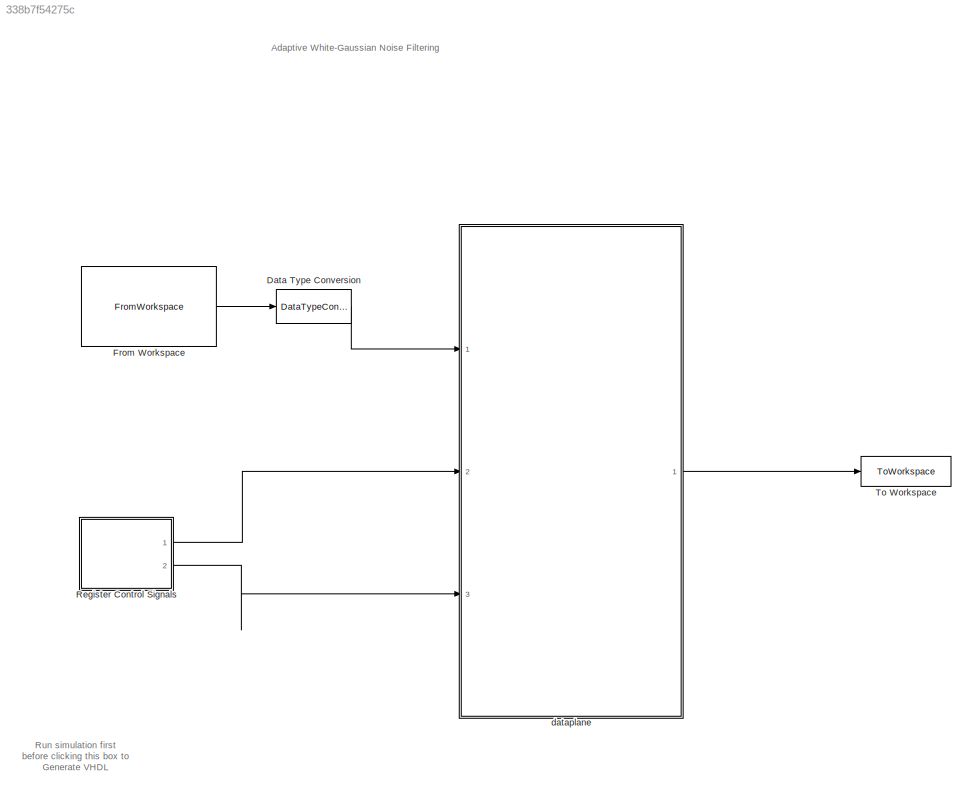
MODEL slx_338b7f54275c
KIND model
CONFIG AbsTol = auto
CONFIG EnableMultiTasking = off
CONFIG FixedStep = auto
CONFIG InitFcn = initCallback
CONFIG MaxStep = auto
CONFIG MinStep = auto
CONFIG RelTol = 1e-3
CONFIG SampleTimeConstraint = Unconstrained
CONFIG Solver = FixedStepDiscrete
CONFIG SolverName = FixedStepDiscrete
CONFIG StartTime = 0.0
CONFIG StopFcn = stopCallback
CONFIG StopTime = stopTime
BLOCK [DataTypeConversion] Data Type Conversion
  OutDataTypeStr = fixdt(1,32,28)
  RndMeth = Floor
  SaturateOnIntegerOverflow = off
BLOCK [FromWorkspace] From Workspace
  Interpolate = off
  OutDataTypeStr = double
  OutputAfterFinalValue = Setting to zero
  SampleTime = 1 / config.system.sampleClockFrequency
  VariableName = testSignal.asTimeSeries
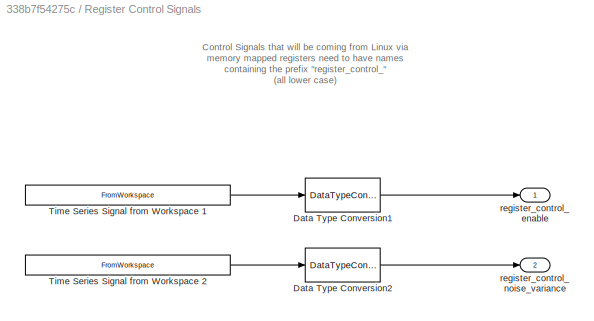
BLOCK [SubSystem] Register Control Signals
  Ports = [0, 2]
  RequestExecContextInheritance = off
BLOCK [DataTypeConversion] Register Control Signals/Data Type Conversion1
  OutDataTypeStr = mp.register{1}.dataType
  RndMeth = Floor
  SaturateOnIntegerOverflow = off
BLOCK [DataTypeConversion] Register Control Signals/Data Type Conversion2
  OutDataTypeStr = mp.register{2}.dataType
  RndMeth = Floor
  SaturateOnIntegerOverflow = off
BLOCK [FromWorkspace] Register Control Signals/Time Series Signal from Workspace 1
  OutDataTypeStr = double
  SampleTime = 1 / config.system.sampleClockFrequency
  VariableName = mp.register{1}.timeseries
BLOCK [FromWorkspace] Register Control Signals/Time Series Signal from Workspace 2
  OutDataTypeStr = double
  SampleTime = 1 / config.system.sampleClockFrequency
  VariableName = mp.register{2}.timeseries
BLOCK [Outport] Register Control Signals/register_control_enable
  VectorParamsAs1DForOutWhenUnconnected = off
BLOCK [Outport] Register Control Signals/register_control_noise_variance
  Port = 2
  VectorParamsAs1DForOutWhenUnconnected = off
BLOCK [ToWorkspace] To Workspace
  FixptAsFi = on
  MaxDataPoints = inf
  Ports = [1]
  SampleTime = -1
  Save2DSignal = 2-D array (concatenate along first dimension)
  SaveFormat = Timeseries
  VariableName = dataOut
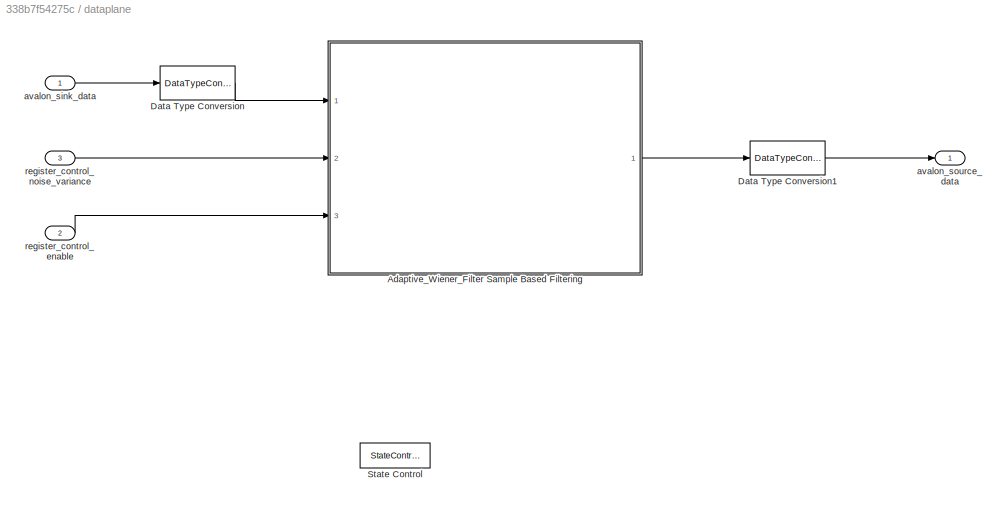
BLOCK [SubSystem] dataplane
  Ports = [3, 1]
  RequestExecContextInheritance = off
  TreatAsAtomicUnit = on
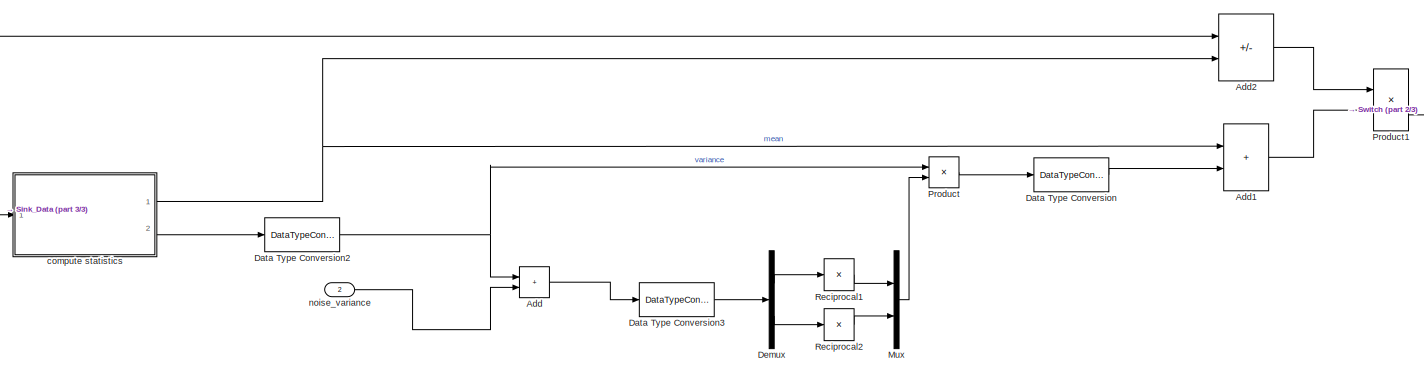
[diagram: dataplane/Adaptive_Wiener_Filter Sample Based Filtering - part 1/3, central region]
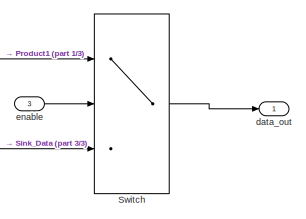
[diagram: dataplane/Adaptive_Wiener_Filter Sample Based Filtering - part 2/3, middle right region]
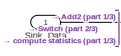
[diagram: dataplane/Adaptive_Wiener_Filter Sample Based Filtering - part 3/3, middle left region]
BLOCK [SubSystem] dataplane/Adaptive_Wiener_Filter Sample Based Filtering
  Ports = [3, 1]
  RequestExecContextInheritance = off
BLOCK [Sum] dataplane/Adaptive_Wiener_Filter Sample Based Filtering/Add
  IconShape = rectangular
  Ports = [2, 1]
BLOCK [Sum] dataplane/Adaptive_Wiener_Filter Sample Based Filtering/Add1
  IconShape = rectangular
  Ports = [2, 1]
BLOCK [Sum] dataplane/Adaptive_Wiener_Filter Sample Based Filtering/Add2
  IconShape = rectangular
  Inputs = +-
  Ports = [2, 1]
BLOCK [DataTypeConversion] dataplane/Adaptive_Wiener_Filter Sample Based Filtering/Data Type Conversion
  OutDataTypeStr = fixdt(1,24,23)
  RndMeth = Floor
  SaturateOnIntegerOverflow = off
BLOCK [DataTypeConversion] dataplane/Adaptive_Wiener_Filter Sample Based Filtering/Data Type Conversion2
  OutDataTypeStr = fixdt(1,27,24)
  RndMeth = Floor
  SaturateOnIntegerOverflow = off
BLOCK [DataTypeConversion] dataplane/Adaptive_Wiener_Filter Sample Based Filtering/Data Type Conversion3
  OutDataTypeStr = fixdt(1,24,20)
  RndMeth = Floor
  SaturateOnIntegerOverflow = off
BLOCK [Demux] dataplane/Adaptive_Wiener_Filter Sample Based Filtering/Demux
  Outputs = 2
  Ports = [1, 2]
BLOCK [Mux] dataplane/Adaptive_Wiener_Filter Sample Based Filtering/Mux
  DisplayOption = bar
  Inputs = 2
  Ports = [2, 1]
BLOCK [Product] dataplane/Adaptive_Wiener_Filter Sample Based Filtering/Product
  Ports = [2, 1]
BLOCK [Product] dataplane/Adaptive_Wiener_Filter Sample Based Filtering/Product1
  Ports = [2, 1]
BLOCK [Product] dataplane/Adaptive_Wiener_Filter Sample Based Filtering/Reciprocal1
  Inputs = /
  Ports = [1, 1]
  RndMeth = Zero
  SaturateOnIntegerOverflow = on
BLOCK [Product] dataplane/Adaptive_Wiener_Filter Sample Based Filtering/Reciprocal2
  Inputs = /
  Ports = [1, 1]
  RndMeth = Zero
  SaturateOnIntegerOverflow = on
BLOCK [Inport] dataplane/Adaptive_Wiener_Filter Sample Based Filtering/Sink_Data
BLOCK [Switch] dataplane/Adaptive_Wiener_Filter Sample Based Filtering/Switch
  Criteria = u2 ~= 0
  InputSameDT = off
  SaturateOnIntegerOverflow = off
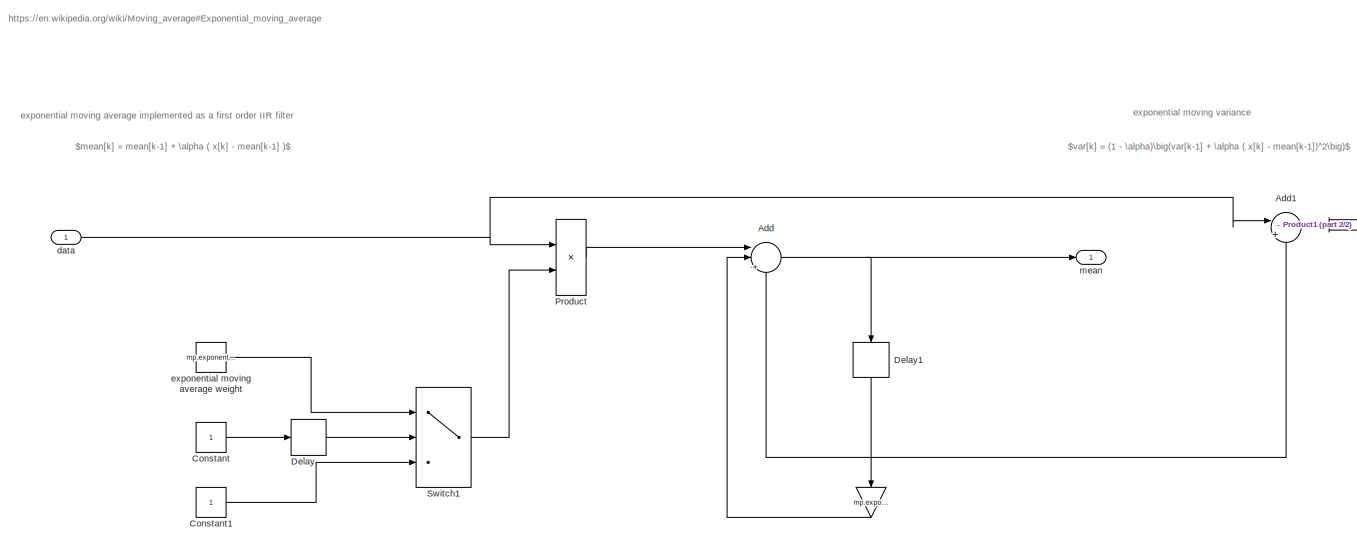
[diagram: dataplane/Adaptive_Wiener_Filter Sample Based Filtering/compute statistics - part 1/2, left side, full height]
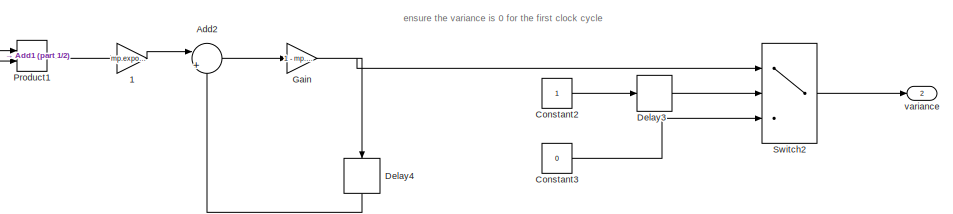
[diagram: dataplane/Adaptive_Wiener_Filter Sample Based Filtering/compute statistics - part 2/2, middle right region]
BLOCK [SubSystem] dataplane/Adaptive_Wiener_Filter Sample Based Filtering/compute statistics
  Ports = [1, 2]
  RequestExecContextInheritance = off
BLOCK [Gain] dataplane/Adaptive_Wiener_Filter Sample Based Filtering/compute statistics/ 
  Gain = mp.exponentialMovingAverageWeight
  NameLocation = left
  OutDataTypeStr = Inherit: Inherit via back propagation
  ParamDataTypeStr = Inherit: Inherit from 'Gain'
BLOCK [Gain] dataplane/Adaptive_Wiener_Filter Sample Based Filtering/compute statistics/ 1
  Gain = mp.exponentialMovingAverageWeight
  OutDataTypeStr = Inherit: Same as input
  ParamDataTypeStr = Inherit: Inherit from 'Gain'
BLOCK [Sum] dataplane/Adaptive_Wiener_Filter Sample Based Filtering/compute statistics/Add
  InputSameDT = on
  Inputs = ||+-+
  OutDataTypeStr = Inherit: Same as first input
  Ports = [3, 1]
BLOCK [Sum] dataplane/Adaptive_Wiener_Filter Sample Based Filtering/compute statistics/Add1
  InputSameDT = on
  Inputs = |+-
  OutDataTypeStr = Inherit: Same as first input
  Ports = [2, 1]
BLOCK [Sum] dataplane/Adaptive_Wiener_Filter Sample Based Filtering/compute statistics/Add2
  AccumDataTypeStr = Inherit: Same as first input
  InputSameDT = on
  Inputs = |++
  Ports = [2, 1]
BLOCK [Constant] dataplane/Adaptive_Wiener_Filter Sample Based Filtering/compute statistics/Constant
  OutDataTypeStr = boolean
  SampleTime = -1
BLOCK [Constant] dataplane/Adaptive_Wiener_Filter Sample Based Filtering/compute statistics/Constant1
  OutDataTypeStr = Inherit: Inherit via back propagation
  SampleTime = -1
BLOCK [Constant] dataplane/Adaptive_Wiener_Filter Sample Based Filtering/compute statistics/Constant2
  OutDataTypeStr = boolean
  SampleTime = -1
BLOCK [Constant] dataplane/Adaptive_Wiener_Filter Sample Based Filtering/compute statistics/Constant3
  OutDataTypeStr = Inherit: Inherit via back propagation
  SampleTime = -1
  Value = 0
BLOCK [Delay] dataplane/Adaptive_Wiener_Filter Sample Based Filtering/compute statistics/Delay
  DelayLength = 1
  InitialCondition = 0
  InputPortMap = u0
  Ports = [1, 1]
BLOCK [Delay] dataplane/Adaptive_Wiener_Filter Sample Based Filtering/compute statistics/Delay1
  DelayLength = 1
  InitialCondition = 0
  InputPortMap = u0
  NameLocation = left
  Ports = [1, 1]
BLOCK [Delay] dataplane/Adaptive_Wiener_Filter Sample Based Filtering/compute statistics/Delay3
  DelayLength = 1
  InitialCondition = 0
  InputPortMap = u0
  Ports = [1, 1]
BLOCK [Delay] dataplane/Adaptive_Wiener_Filter Sample Based Filtering/compute statistics/Delay4
  DelayLength = 1
  InitialCondition = 0
  InputPortMap = u0
  NameLocation = left
  Ports = [1, 1]
BLOCK [Gain] dataplane/Adaptive_Wiener_Filter Sample Based Filtering/compute statistics/Gain
  Gain = 1 - mp.exponentialMovingAverageWeight
  OutDataTypeStr = Inherit: Same as input
  ParamDataTypeStr = Inherit: Inherit from 'Gain'
BLOCK [Product] dataplane/Adaptive_Wiener_Filter Sample Based Filtering/compute statistics/Product
  OutDataTypeStr = Inherit: Same as first input
  Ports = [2, 1]
BLOCK [Product] dataplane/Adaptive_Wiener_Filter Sample Based Filtering/compute statistics/Product1
  OutDataTypeStr = fixdt(1,50)
  OutMax = 2
  OutMin = -2
  Ports = [2, 1]
BLOCK [Switch] dataplane/Adaptive_Wiener_Filter Sample Based Filtering/compute statistics/Switch1
  Criteria = u2 ~= 0
  SaturateOnIntegerOverflow = off
BLOCK [Switch] dataplane/Adaptive_Wiener_Filter Sample Based Filtering/compute statistics/Switch2
  Criteria = u2 ~= 0
  SaturateOnIntegerOverflow = off
BLOCK [Inport] dataplane/Adaptive_Wiener_Filter Sample Based Filtering/compute statistics/data
BLOCK [Constant] dataplane/Adaptive_Wiener_Filter Sample Based Filtering/compute statistics/exponential moving average weight
  SampleTime = -1
  Value = mp.exponentialMovingAverageWeight
BLOCK [Outport] dataplane/Adaptive_Wiener_Filter Sample Based Filtering/compute statistics/mean
  InitialOutput = 0
BLOCK [Outport] dataplane/Adaptive_Wiener_Filter Sample Based Filtering/compute statistics/variance
  InitialOutput = 0
  Port = 2
BLOCK [Outport] dataplane/Adaptive_Wiener_Filter Sample Based Filtering/data_out
BLOCK [Inport] dataplane/Adaptive_Wiener_Filter Sample Based Filtering/enable
  Port = 3
BLOCK [Inport] dataplane/Adaptive_Wiener_Filter Sample Based Filtering/noise_variance
  Port = 2
BLOCK [DataTypeConversion] dataplane/Data Type Conversion
  OutDataTypeStr = fixdt(1,24,23)
  RndMeth = Floor
  SaturateOnIntegerOverflow = off
BLOCK [DataTypeConversion] dataplane/Data Type Conversion1
  OutDataTypeStr = fixdt(1,mp.W_bits,mp.F_bits)
  RndMeth = Floor
  SaturateOnIntegerOverflow = off
BLOCK [StateControl] dataplane/State Control
  StateControl = Synchronous
BLOCK [Inport] dataplane/avalon_sink_data
BLOCK [Outport] dataplane/avalon_source_data
  VectorParamsAs1DForOutWhenUnconnected = off
BLOCK [Inport] dataplane/register_control_enable
  Port = 2
BLOCK [Inport] dataplane/register_control_noise_variance
  Port = 3
ANNOTATION (root): Adaptive White-Gaussian Noise Filtering
ANNOTATION (root): Run simulation first before clicking this box to Generate VHDL
ANNOTATION Register Control Signals: Control Signals that will be coming from Linux via memory mapped registers need to have names containing the prefix "register_control_" (all lower case)
ANNOTATION dataplane/Adaptive_Wiener_Filter Sample Based Filtering/compute statistics: https://en.wikipedia.org/wiki/Moving_average#Exponential_moving_average
ANNOTATION dataplane/Adaptive_Wiener_Filter Sample Based Filtering/compute statistics: $mean[k] = mean[k-1] + \alpha ( x[k] - mean[k-1] )$
ANNOTATION dataplane/Adaptive_Wiener_Filter Sample Based Filtering/compute statistics: $var[k] = (1 - \alpha)\big(var[k-1] + \alpha ( x[k] - mean[k-1])^2\big)$
ANNOTATION dataplane/Adaptive_Wiener_Filter Sample Based Filtering/compute statistics: ensure the variance is 0 for the first clock cycle
ANNOTATION dataplane/Adaptive_Wiener_Filter Sample Based Filtering/compute statistics: exponential moving average implemented as a first order IIR filter
ANNOTATION dataplane/Adaptive_Wiener_Filter Sample Based Filtering/compute statistics: exponential moving variance
LINE Data Type Conversion:1 -> dataplane:1
LINE From Workspace:1 -> Data Type Conversion:1
LINE Register Control Signals/Data Type Conversion1:1 -> Register Control Signals/register_control_enable:1
LINE Register Control Signals/Data Type Conversion2:1 -> Register Control Signals/register_control_noise_variance:1
LINE Register Control Signals/Time Series Signal from Workspace 1:1 -> Register Control Signals/Data Type Conversion1:1
LINE Register Control Signals/Time Series Signal from Workspace 2:1 -> Register Control Signals/Data Type Conversion2:1
LINE Register Control Signals:1 -> dataplane:2
LINE Register Control Signals:2 -> dataplane:3
LINE dataplane/Adaptive_Wiener_Filter Sample Based Filtering/Add1:1 -> dataplane/Adaptive_Wiener_Filter Sample Based Filtering/Product1:2
LINE dataplane/Adaptive_Wiener_Filter Sample Based Filtering/Add2:1 -> dataplane/Adaptive_Wiener_Filter Sample Based Filtering/Product1:1
LINE dataplane/Adaptive_Wiener_Filter Sample Based Filtering/Add:1 -> dataplane/Adaptive_Wiener_Filter Sample Based Filtering/Data Type Conversion3:1
NET dataplane/Adaptive_Wiener_Filter Sample Based Filtering/Data Type Conversion2:1 -> dataplane/Adaptive_Wiener_Filter Sample Based Filtering/Add:1, dataplane/Adaptive_Wiener_Filter Sample Based Filtering/Product:1
LINE dataplane/Adaptive_Wiener_Filter Sample Based Filtering/Data Type Conversion3:1 -> dataplane/Adaptive_Wiener_Filter Sample Based Filtering/Demux:1
LINE dataplane/Adaptive_Wiener_Filter Sample Based Filtering/Data Type Conversion:1 -> dataplane/Adaptive_Wiener_Filter Sample Based Filtering/Add1:2
LINE dataplane/Adaptive_Wiener_Filter Sample Based Filtering/Demux:1 -> dataplane/Adaptive_Wiener_Filter Sample Based Filtering/Reciprocal1:1
LINE dataplane/Adaptive_Wiener_Filter Sample Based Filtering/Demux:2 -> dataplane/Adaptive_Wiener_Filter Sample Based Filtering/Reciprocal2:1
LINE dataplane/Adaptive_Wiener_Filter Sample Based Filtering/Mux:1 -> dataplane/Adaptive_Wiener_Filter Sample Based Filtering/Product:2
LINE dataplane/Adaptive_Wiener_Filter Sample Based Filtering/Product1:1 -> dataplane/Adaptive_Wiener_Filter Sample Based Filtering/Switch:1
LINE dataplane/Adaptive_Wiener_Filter Sample Based Filtering/Product:1 -> dataplane/Adaptive_Wiener_Filter Sample Based Filtering/Data Type Conversion:1
LINE dataplane/Adaptive_Wiener_Filter Sample Based Filtering/Reciprocal1:1 -> dataplane/Adaptive_Wiener_Filter Sample Based Filtering/Mux:1
LINE dataplane/Adaptive_Wiener_Filter Sample Based Filtering/Reciprocal2:1 -> dataplane/Adaptive_Wiener_Filter Sample Based Filtering/Mux:2
NET dataplane/Adaptive_Wiener_Filter Sample Based Filtering/Sink_Data:1 -> dataplane/Adaptive_Wiener_Filter Sample Based Filtering/Add2:1, dataplane/Adaptive_Wiener_Filter Sample Based Filtering/Switch:3, dataplane/Adaptive_Wiener_Filter Sample Based Filtering/compute statistics:1
LINE dataplane/Adaptive_Wiener_Filter Sample Based Filtering/Switch:1 -> dataplane/Adaptive_Wiener_Filter Sample Based Filtering/data_out:1
LINE dataplane/Adaptive_Wiener_Filter Sample Based Filtering/compute statistics/ 1:1 -> dataplane/Adaptive_Wiener_Filter Sample Based Filtering/compute statistics/Add2:1
LINE dataplane/Adaptive_Wiener_Filter Sample Based Filtering/compute statistics/ :1 -> dataplane/Adaptive_Wiener_Filter Sample Based Filtering/compute statistics/Add:2
NET dataplane/Adaptive_Wiener_Filter Sample Based Filtering/compute statistics/Add1:1 -> dataplane/Adaptive_Wiener_Filter Sample Based Filtering/compute statistics/Product1:1, dataplane/Adaptive_Wiener_Filter Sample Based Filtering/compute statistics/Product1:2
LINE dataplane/Adaptive_Wiener_Filter Sample Based Filtering/compute statistics/Add2:1 -> dataplane/Adaptive_Wiener_Filter Sample Based Filtering/compute statistics/Gain:1
NET dataplane/Adaptive_Wiener_Filter Sample Based Filtering/compute statistics/Add:1 -> dataplane/Adaptive_Wiener_Filter Sample Based Filtering/compute statistics/Delay1:1, dataplane/Adaptive_Wiener_Filter Sample Based Filtering/compute statistics/mean:1
LINE dataplane/Adaptive_Wiener_Filter Sample Based Filtering/compute statistics/Constant1:1 -> dataplane/Adaptive_Wiener_Filter Sample Based Filtering/compute statistics/Switch1:3
LINE dataplane/Adaptive_Wiener_Filter Sample Based Filtering/compute statistics/Constant2:1 -> dataplane/Adaptive_Wiener_Filter Sample Based Filtering/compute statistics/Delay3:1
LINE dataplane/Adaptive_Wiener_Filter Sample Based Filtering/compute statistics/Constant3:1 -> dataplane/Adaptive_Wiener_Filter Sample Based Filtering/compute statistics/Switch2:3
LINE dataplane/Adaptive_Wiener_Filter Sample Based Filtering/compute statistics/Constant:1 -> dataplane/Adaptive_Wiener_Filter Sample Based Filtering/compute statistics/Delay:1
NET dataplane/Adaptive_Wiener_Filter Sample Based Filtering/compute statistics/Delay1:1 -> dataplane/Adaptive_Wiener_Filter Sample Based Filtering/compute statistics/ :1, dataplane/Adaptive_Wiener_Filter Sample Based Filtering/compute statistics/Add1:2, dataplane/Adaptive_Wiener_Filter Sample Based Filtering/compute statistics/Add:3
LINE dataplane/Adaptive_Wiener_Filter Sample Based Filtering/compute statistics/Delay3:1 -> dataplane/Adaptive_Wiener_Filter Sample Based Filtering/compute statistics/Switch2:2
LINE dataplane/Adaptive_Wiener_Filter Sample Based Filtering/compute statistics/Delay4:1 -> dataplane/Adaptive_Wiener_Filter Sample Based Filtering/compute statistics/Add2:2
LINE dataplane/Adaptive_Wiener_Filter Sample Based Filtering/compute statistics/Delay:1 -> dataplane/Adaptive_Wiener_Filter Sample Based Filtering/compute statistics/Switch1:2
NET dataplane/Adaptive_Wiener_Filter Sample Based Filtering/compute statistics/Gain:1 -> dataplane/Adaptive_Wiener_Filter Sample Based Filtering/compute statistics/Delay4:1, dataplane/Adaptive_Wiener_Filter Sample Based Filtering/compute statistics/Switch2:1
LINE dataplane/Adaptive_Wiener_Filter Sample Based Filtering/compute statistics/Product1:1 -> dataplane/Adaptive_Wiener_Filter Sample Based Filtering/compute statistics/ 1:1
LINE dataplane/Adaptive_Wiener_Filter Sample Based Filtering/compute statistics/Product:1 -> dataplane/Adaptive_Wiener_Filter Sample Based Filtering/compute statistics/Add:1
LINE dataplane/Adaptive_Wiener_Filter Sample Based Filtering/compute statistics/Switch1:1 -> dataplane/Adaptive_Wiener_Filter Sample Based Filtering/compute statistics/Product:2
LINE dataplane/Adaptive_Wiener_Filter Sample Based Filtering/compute statistics/Switch2:1 -> dataplane/Adaptive_Wiener_Filter Sample Based Filtering/compute statistics/variance:1
NET dataplane/Adaptive_Wiener_Filter Sample Based Filtering/compute statistics/data:1 -> dataplane/Adaptive_Wiener_Filter Sample Based Filtering/compute statistics/Add1:1, dataplane/Adaptive_Wiener_Filter Sample Based Filtering/compute statistics/Product:1
LINE dataplane/Adaptive_Wiener_Filter Sample Based Filtering/compute statistics/exponential moving average weight:1 -> dataplane/Adaptive_Wiener_Filter Sample Based Filtering/compute statistics/Switch1:1
NET dataplane/Adaptive_Wiener_Filter Sample Based Filtering/compute statistics:1 -> dataplane/Adaptive_Wiener_Filter Sample Based Filtering/Add1:1, dataplane/Adaptive_Wiener_Filter Sample Based Filtering/Add2:2
LINE dataplane/Adaptive_Wiener_Filter Sample Based Filtering/compute statistics:2 -> dataplane/Adaptive_Wiener_Filter Sample Based Filtering/Data Type Conversion2:1
LINE dataplane/Adaptive_Wiener_Filter Sample Based Filtering/enable:1 -> dataplane/Adaptive_Wiener_Filter Sample Based Filtering/Switch:2
LINE dataplane/Adaptive_Wiener_Filter Sample Based Filtering/noise_variance:1 -> dataplane/Adaptive_Wiener_Filter Sample Based Filtering/Add:2
LINE dataplane/Adaptive_Wiener_Filter Sample Based Filtering:1 -> dataplane/Data Type Conversion1:1
LINE dataplane/Data Type Conversion1:1 -> dataplane/avalon_source_data:1
LINE dataplane/Data Type Conversion:1 -> dataplane/Adaptive_Wiener_Filter Sample Based Filtering:1
LINE dataplane/avalon_sink_data:1 -> dataplane/Data Type Conversion:1
LINE dataplane/register_control_enable:1 -> dataplane/Adaptive_Wiener_Filter Sample Based Filtering:3
LINE dataplane/register_control_noise_variance:1 -> dataplane/Adaptive_Wiener_Filter Sample Based Filtering:2
LINE dataplane:1 -> To Workspace:1
note: NET lines group one-source signal fan-out (src -> all destinations, sorted); 1:1 wires keep LINE
